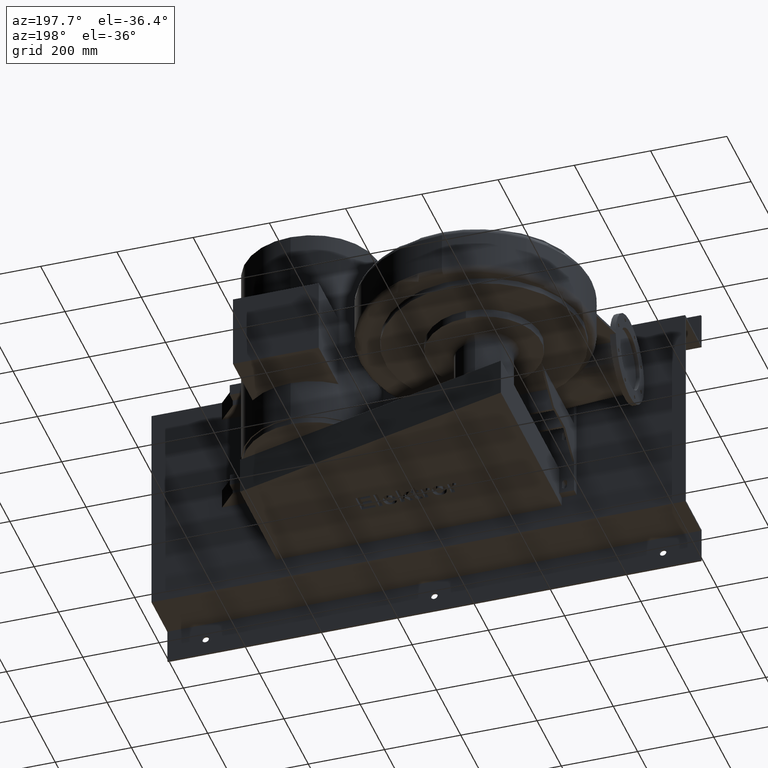
[diagram: clean part render]
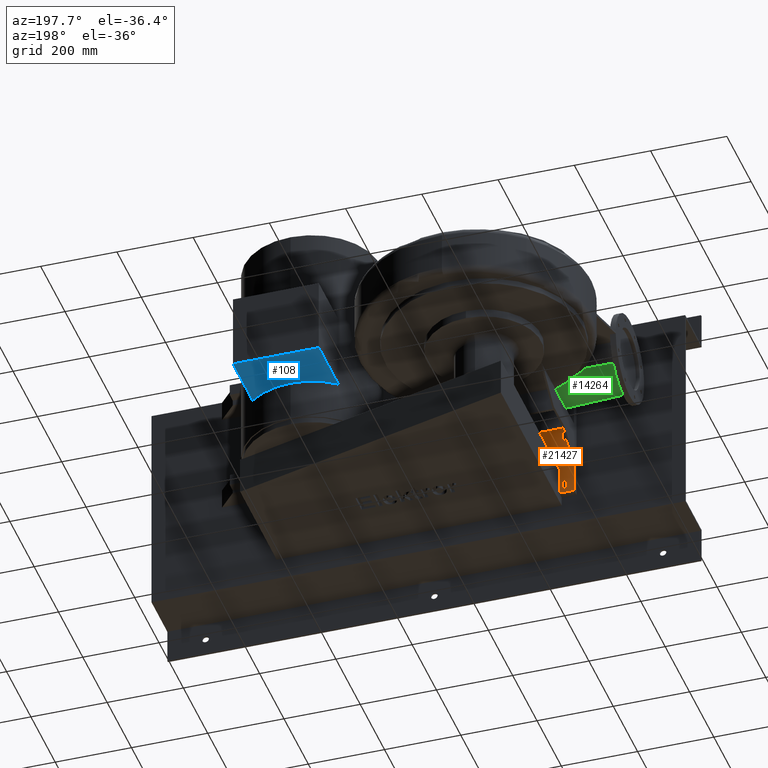
[diagram: same view with three faces highlighted in distinct colors, each labeled with its STEP entity id]
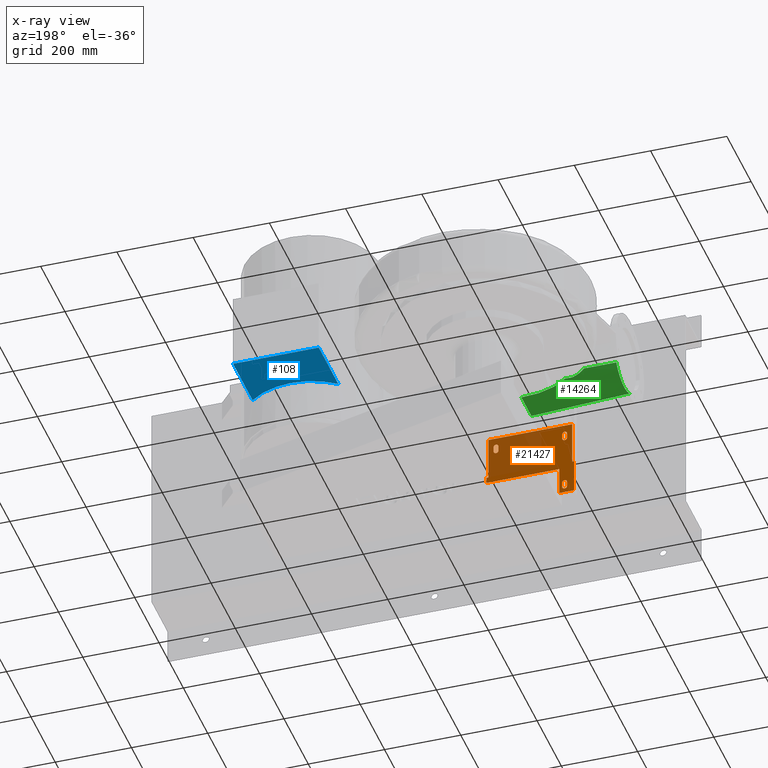
[diagram: x-ray of the same camera — body ghosted, the three highlighted faces saturated]
A machine part, auxiliary view with three faces highlighted in distinct colors.
The next image is the same camera in x-ray (body ghosted, the three faces saturated) — at least one of them is partly hidden behind the body in this view.
Their STEP definitions:

[orange] entity #21427 — the highlighted planar face has unit normal (0, 1, 0).
#9636=CARTESIAN_POINT('',(-60.999999999999936,-365.0,-219.50000000000003));
#9637=VERTEX_POINT('',#9636);
#9644=CARTESIAN_POINT('',(130.00000000000006,-365.0,-219.5));
#9645=VERTEX_POINT('',#9644);
#9646=CARTESIAN_POINT('',(130.00000000000006,-365.0,-219.5));
#9647=DIRECTION('',(-1.0,0.0,0.0));
#9648=VECTOR('',#9647,191.0);
#9649=LINE('',#9646,#9648);
#9650=EDGE_CURVE('',#9645,#9637,#9649,.T.);
#19228=CARTESIAN_POINT('',(-60.999999999999936,-365.0,-293.5));
#19229=VERTEX_POINT('',#19228);
#19230=CARTESIAN_POINT('',(-60.999999999999943,-365.0,-219.5));
#19231=DIRECTION('',(0.0,0.0,-1.0));
#19232=VECTOR('',#19231,73.999999999999943);
#19233=LINE('',#19230,#19232);
#19234=EDGE_CURVE('',#9637,#19229,#19233,.T.);
#19306=CARTESIAN_POINT('',(-99.999999999999929,-365.0,-293.5));
#19307=VERTEX_POINT('',#19306);
#19314=CARTESIAN_POINT('',(-60.999999999999929,-365.0,-293.5));
#19315=DIRECTION('',(-1.0,0.0,0.0));
#19316=VECTOR('',#19315,39.0);
#19317=LINE('',#19314,#19316);
#19318=EDGE_CURVE('',#19229,#19307,#19317,.T.);
#20595=CARTESIAN_POINT('',(111.50000000000003,-365.0,-113.0));
#20596=VERTEX_POINT('',#20595);
#20597=CARTESIAN_POINT('',(98.500000000000057,-365.0,-113.0));
#20598=VERTEX_POINT('',#20597);
#20599=CARTESIAN_POINT('',(105.00000000000007,-365.0,-113.0));
#20600=DIRECTION('',(0.0,-1.0,0.0));
#20601=DIRECTION('',(-1.0,0.0,0.0));
#20602=AXIS2_PLACEMENT_3D('',#20599,#20600,#20601);
#20603=CIRCLE('',#20602,6.500000000000021);
#20604=EDGE_CURVE('',#20596,#20598,#20603,.T.);
#20627=CARTESIAN_POINT('',(98.500000000000085,-365.0,-126.00000000000001));
#20628=VERTEX_POINT('',#20627);
#20629=CARTESIAN_POINT('',(98.500000000000043,-365.0,-113.0));
#20630=DIRECTION('',(0.0,0.0,-1.0));
#20631=VECTOR('',#20630,13.000000000000014);
#20632=LINE('',#20629,#20631);
#20633=EDGE_CURVE('',#20598,#20628,#20632,.T.);
#20651=CARTESIAN_POINT('',(111.50000000000006,-365.0,-126.00000000000001));
#20652=VERTEX_POINT('',#20651);
#20653=CARTESIAN_POINT('',(105.00000000000007,-365.0,-126.00000000000001));
#20654=DIRECTION('',(0.0,-1.0,0.0));
#20655=DIRECTION('',(1.0,0.0,0.0));
#20656=AXIS2_PLACEMENT_3D('',#20653,#20654,#20655);
#20657=CIRCLE('',#20656,6.5);
#20658=EDGE_CURVE('',#20628,#20652,#20657,.T.);
#20676=CARTESIAN_POINT('',(111.50000000000007,-365.0,-126.00000000000003));
#20677=DIRECTION('',(0.0,0.0,1.0));
#20678=VECTOR('',#20677,13.0);
#20679=LINE('',#20676,#20678);
#20680=EDGE_CURVE('',#20652,#20596,#20679,.T.);
#20693=CARTESIAN_POINT('',(-68.499999999999915,-365.0,-263.0));
#20694=VERTEX_POINT('',#20693);
#20695=CARTESIAN_POINT('',(-81.499999999999915,-365.0,-263.0));
#20696=VERTEX_POINT('',#20695);
#20697=CARTESIAN_POINT('',(-74.999999999999915,-365.0,-263.0));
#20698=DIRECTION('',(0.0,-1.0,0.0));
#20699=DIRECTION('',(1.0,0.0,0.0));
#20700=AXIS2_PLACEMENT_3D('',#20697,#20698,#20699);
#20701=CIRCLE('',#20700,6.5);
#20702=EDGE_CURVE('',#20694,#20696,#20701,.T.);
#20725=CARTESIAN_POINT('',(-81.499999999999915,-365.0,-276.0));
#20726=VERTEX_POINT('',#20725);
#20727=CARTESIAN_POINT('',(-81.499999999999915,-365.0,-262.99999999999994));
#20728=DIRECTION('',(0.0,0.0,-1.0));
#20729=VECTOR('',#20728,13.0);
#20730=LINE('',#20727,#20729);
#20731=EDGE_CURVE('',#20696,#20726,#20730,.T.);
#20749=CARTESIAN_POINT('',(-68.499999999999915,-365.0,-276.0));
#20750=VERTEX_POINT('',#20749);
#20751=CARTESIAN_POINT('',(-74.999999999999915,-365.0,-276.0));
#20752=DIRECTION('',(0.0,-1.0,0.0));
#20753=DIRECTION('',(-1.0,0.0,0.0));
#20754=AXIS2_PLACEMENT_3D('',#20751,#20752,#20753);
#20755=CIRCLE('',#20754,6.49999999999999);
#20756=EDGE_CURVE('',#20726,#20750,#20755,.T.);
#20774=CARTESIAN_POINT('',(-68.499999999999915,-365.0,-276.0));
#20775=DIRECTION('',(0.0,0.0,1.0));
#20776=VECTOR('',#20775,13.000000000000057);
#20777=LINE('',#20774,#20776);
#20778=EDGE_CURVE('',#20750,#20694,#20777,.T.);
#20847=CARTESIAN_POINT('',(-68.499999999999915,-365.0,-126.00000000000001));
#20848=VERTEX_POINT('',#20847);
#20849=CARTESIAN_POINT('',(-68.499999999999929,-365.0,-113.0));
#20850=VERTEX_POINT('',#20849);
#20851=CARTESIAN_POINT('',(-68.499999999999915,-365.0,-126.00000000000003));
#20852=DIRECTION('',(0.0,0.0,1.0));
#20853=VECTOR('',#20852,13.000000000000014);
#20854=LINE('',#20851,#20853);
#20855=EDGE_CURVE('',#20848,#20850,#20854,.T.);
#20878=CARTESIAN_POINT('',(-81.499999999999915,-365.0,-126.00000000000001));
#20879=VERTEX_POINT('',#20878);
#20880=CARTESIAN_POINT('',(-74.999999999999915,-365.0,-126.00000000000001));
#20881=DIRECTION('',(0.0,-1.0,0.0));
#20882=DIRECTION('',(1.0,0.0,0.0));
#20883=AXIS2_PLACEMENT_3D('',#20880,#20881,#20882);
#20884=CIRCLE('',#20883,6.5);
#20885=EDGE_CURVE('',#20879,#20848,#20884,.T.);
#20903=CARTESIAN_POINT('',(-81.499999999999915,-365.0,-113.0));
#20904=VERTEX_POINT('',#20903);
#20905=CARTESIAN_POINT('',(-81.499999999999929,-365.0,-113.00000000000001));
#20906=DIRECTION('',(0.0,0.0,-1.0));
#20907=VECTOR('',#20906,13.000000000000014);
#20908=LINE('',#20905,#20907);
#20909=EDGE_CURVE('',#20904,#20879,#20908,.T.);
#20927=CARTESIAN_POINT('',(-74.999999999999929,-365.0,-113.0));
#20928=DIRECTION('',(0.0,-1.0,0.0));
#20929=DIRECTION('',(-1.0,0.0,0.0));
#20930=AXIS2_PLACEMENT_3D('',#20927,#20928,#20929);
#20931=CIRCLE('',#20930,6.5);
#20932=EDGE_CURVE('',#20850,#20904,#20931,.T.);
#20957=CARTESIAN_POINT('',(125.00000000000001,-365.0,-203.49999999999997));
#20958=VERTEX_POINT('',#20957);
#20967=CARTESIAN_POINT('',(125.00000000000001,-365.0,-87.499999999999986));
#20968=VERTEX_POINT('',#20967);
#20969=CARTESIAN_POINT('',(125.00000000000001,-365.0,-87.499999999999986));
#20970=DIRECTION('',(0.0,0.0,-1.0));
#20971=VECTOR('',#20970,116.00000000000001);
#20972=LINE('',#20969,#20971);
#20973=EDGE_CURVE('',#20968,#20958,#20972,.T.);
#21038=CARTESIAN_POINT('',(-94.999999999999929,-365.0,-203.49999999999997));
#21039=VERTEX_POINT('',#21038);
#21053=CARTESIAN_POINT('',(-94.999999999999929,-365.0,-87.499999999999986));
#21054=VERTEX_POINT('',#21053);
#21061=CARTESIAN_POINT('',(-94.999999999999929,-365.0,-87.499999999999986));
#21062=DIRECTION('',(0.0,0.0,-1.0));
#21063=VECTOR('',#21062,116.00000000000001);
#21064=LINE('',#21061,#21063);
#21065=EDGE_CURVE('',#21054,#21039,#21064,.T.);
#21077=CARTESIAN_POINT('',(-94.999999999999929,-365.0,-87.499999999999986));
#21078=DIRECTION('',(1.0,0.0,0.0));
#21079=VECTOR('',#21078,219.99999999999994);
#21080=LINE('',#21077,#21079);
#21081=EDGE_CURVE('',#21054,#20968,#21080,.T.);
#21166=CARTESIAN_POINT('',(130.00000000000006,-365.0,-203.49999999999997));
#21167=VERTEX_POINT('',#21166);
#21174=CARTESIAN_POINT('',(130.00000000000006,-365.0,-203.49999999999997));
#21175=DIRECTION('',(-1.0,0.0,0.0));
#21176=VECTOR('',#21175,5.000000000000043);
#21177=LINE('',#21174,#21176);
#21178=EDGE_CURVE('',#21167,#20958,#21177,.T.);
#21269=CARTESIAN_POINT('',(-99.999999999999929,-365.0,-203.49999999999997));
#21270=VERTEX_POINT('',#21269);
#21277=CARTESIAN_POINT('',(-99.999999999999929,-365.0,-293.5));
#21278=DIRECTION('',(0.0,0.0,1.0));
#21279=VECTOR('',#21278,90.000000000000028);
#21280=LINE('',#21277,#21279);
#21281=EDGE_CURVE('',#19307,#21270,#21280,.T.);
#21376=CARTESIAN_POINT('',(-94.999999999999929,-365.0,-203.49999999999997));
#21377=DIRECTION('',(-1.0,0.0,0.0));
#21378=VECTOR('',#21377,5.0);
#21379=LINE('',#21376,#21378);
#21380=EDGE_CURVE('',#21039,#21270,#21379,.T.);
#21387=CARTESIAN_POINT('',(15.000000000000071,-365.0,-203.49999999999997));
#21388=DIRECTION('',(0.0,1.0,0.0));
#21389=DIRECTION('',(0.0,0.0,1.0));
#21390=AXIS2_PLACEMENT_3D('',#21387,#21388,#21389);
#21391=PLANE('',#21390);
#21392=ORIENTED_EDGE('',*,*,#19234,.T.);
#21393=ORIENTED_EDGE('',*,*,#19318,.T.);
#21394=ORIENTED_EDGE('',*,*,#21281,.T.);
#21395=ORIENTED_EDGE('',*,*,#21380,.F.);
#21396=ORIENTED_EDGE('',*,*,#21065,.F.);
#21397=ORIENTED_EDGE('',*,*,#21081,.T.);
#21398=ORIENTED_EDGE('',*,*,#20973,.T.);
#21399=ORIENTED_EDGE('',*,*,#21178,.F.);
#21400=CARTESIAN_POINT('',(130.00000000000006,-365.0,-203.49999999999997));
#21401=DIRECTION('',(0.0,0.0,-1.0));
#21402=VECTOR('',#21401,16.000000000000028);
#21403=LINE('',#21400,#21402);
#21404=EDGE_CURVE('',#21167,#9645,#21403,.T.);
#21405=ORIENTED_EDGE('',*,*,#21404,.T.);
#21406=ORIENTED_EDGE('',*,*,#9650,.T.);
#21407=EDGE_LOOP('',(#21392,#21393,#21394,#21395,#21396,#21397,#21398,#21399,#21405,#21406));
#21408=FACE_OUTER_BOUND('',#21407,.T.);
#21409=ORIENTED_EDGE('',*,*,#20604,.T.);
#21410=ORIENTED_EDGE('',*,*,#20633,.T.);
#21411=ORIENTED_EDGE('',*,*,#20658,.T.);
#21412=ORIENTED_EDGE('',*,*,#20680,.T.);
#21413=EDGE_LOOP('',(#21409,#21410,#21411,#21412));
#21414=FACE_BOUND('',#21413,.T.);
#21415=ORIENTED_EDGE('',*,*,#20702,.T.);
#21416=ORIENTED_EDGE('',*,*,#20731,.T.);
#21417=ORIENTED_EDGE('',*,*,#20756,.T.);
#21418=ORIENTED_EDGE('',*,*,#20778,.T.);
#21419=EDGE_LOOP('',(#21415,#21416,#21417,#21418));
#21420=FACE_BOUND('',#21419,.T.);
#21421=ORIENTED_EDGE('',*,*,#20855,.T.);
#21422=ORIENTED_EDGE('',*,*,#20932,.T.);
#21423=ORIENTED_EDGE('',*,*,#20909,.T.);
#21424=ORIENTED_EDGE('',*,*,#20885,.T.);
#21425=EDGE_LOOP('',(#21421,#21422,#21423,#21424));
#21426=FACE_BOUND('',#21425,.T.);
#21427=ADVANCED_FACE('',(#21408,#21414,#21420,#21426),#21391,.T.);

[blue] entity #108 — the highlighted planar face has unit normal (0, 0, -1).
#68=CARTESIAN_POINT('',(519.99999999999977,54.000000000000327,-94.500000000000242));
#69=DIRECTION('',(0.0,0.0,-1.0));
#70=DIRECTION('',(0.0,-1.0,0.0));
#71=AXIS2_PLACEMENT_3D('',#68,#69,#70);
#72=PLANE('',#71);
#73=CARTESIAN_POINT('',(407.49999999999977,-17.058889376661295,-94.500000000000313));
#74=VERTEX_POINT('',#73);
#75=CARTESIAN_POINT('',(632.49999999999989,-17.058889376661384,-94.500000000000057));
#76=VERTEX_POINT('',#75);
#77=CARTESIAN_POINT('',(519.99999999999977,-154.99999999999946,-94.500000000000242));
#78=DIRECTION('',(0.0,0.0,-1.0));
#79=DIRECTION('',(0.0,1.0,0.0));
#80=AXIS2_PLACEMENT_3D('',#77,#78,#79);
#81=CIRCLE('',#80,178.00000000000006);
#82=EDGE_CURVE('',#74,#76,#81,.T.);
#83=ORIENTED_EDGE('',*,*,#82,.F.);
#84=CARTESIAN_POINT('',(407.49999999999966,144.00000000000017,-94.500000000000455));
#85=VERTEX_POINT('',#84);
#86=CARTESIAN_POINT('',(407.49999999999966,144.00000000000017,-94.500000000000455));
#87=DIRECTION('',(0.0,-1.0,0.0));
#88=VECTOR('',#87,161.05888937666148);
#89=LINE('',#86,#88);
#90=EDGE_CURVE('',#85,#74,#89,.T.);
#91=ORIENTED_EDGE('',*,*,#90,.F.);
#92=CARTESIAN_POINT('',(632.49999999999966,144.00000000000045,-94.500000000000199));
#93=VERTEX_POINT('',#92);
#94=CARTESIAN_POINT('',(632.49999999999966,144.00000000000045,-94.500000000000199));
#95=DIRECTION('',(-1.0,0.0,0.0));
#96=VECTOR('',#95,225.0);
#97=LINE('',#94,#96);
#98=EDGE_CURVE('',#93,#85,#97,.T.);
#99=ORIENTED_EDGE('',*,*,#98,.F.);
#100=CARTESIAN_POINT('',(632.49999999999989,-17.05888937666138,-94.500000000000043));
#101=DIRECTION('',(0.0,1.0,0.0));
#102=VECTOR('',#101,161.05888937666182);
#103=LINE('',#100,#102);
#104=EDGE_CURVE('',#76,#93,#103,.T.);
#105=ORIENTED_EDGE('',*,*,#104,.F.);
#106=EDGE_LOOP('',(#83,#91,#99,#105));
#107=FACE_OUTER_BOUND('',#106,.T.);
#108=ADVANCED_FACE('',(#107),#72,.T.);

[green] entity #14264 — the highlighted face is a freeform B-spline surface patch.
#13947=CARTESIAN_POINT('',(9.372842E-014,-327.00000000000017,-67.499999999999957));
#13948=VERTEX_POINT('',#13947);
#13999=CARTESIAN_POINT('',(-142.58879906388901,-202.93830878871341,-67.499999999999986));
#14000=VERTEX_POINT('',#13999);
#14001=CARTESIAN_POINT('',(-182.29281062157435,-188.17008154841352,-58.035722901023775));
#14002=VERTEX_POINT('',#14001);
#14003=CARTESIAN_POINT('',(-142.58879906388898,-202.93830878871341,-67.499999999999986));
#14004=CARTESIAN_POINT('',(-143.28174014508897,-202.96888680181542,-67.499999999999986));
#14005=CARTESIAN_POINT('',(-143.98407246139942,-202.95091011329063,-67.482780645454525));
#14006=CARTESIAN_POINT('',(-147.13059697664153,-202.73818814826112,-67.355842960654627));
#14007=CARTESIAN_POINT('',(-150.02322275225004,-202.14854397463193,-67.091895926075466));
#14008=CARTESIAN_POINT('',(-160.88502956155295,-199.11876353005181,-65.622259783440313));
#14009=CARTESIAN_POINT('',(-170.81243549706505,-194.9056918153513,-63.4301891676023));
#14010=CARTESIAN_POINT('',(-180.3325988045703,-189.37753832839405,-59.042825035459721));
#14011=CARTESIAN_POINT('',(-181.32458254809197,-188.77924183552796,-58.55245935496697));
#14012=CARTESIAN_POINT('',(-182.29281062157438,-188.17008154841358,-58.03572290102376));
#14013=B_SPLINE_CURVE_WITH_KNOTS('',3,(#14003,#14004,#14005,#14006,#14007,#14008,#14009,#14010,#14011,#14012),.UNSPECIFIED.,.F.,.U.,(4,2,2,2,4),(2.872819435940258,3.132940653965591,4.083313771136317,6.532725547245983,6.822904306382004),.UNSPECIFIED.);
#14014=EDGE_CURVE('',#14000,#14002,#14013,.T.);
#14143=CARTESIAN_POINT('',(-264.99999999999994,-317.96738566437352,-62.167372465287578));
#14144=VERTEX_POINT('',#14143);
#14152=CARTESIAN_POINT('',(9.372842E-014,-327.00000000000017,-67.499999999999957));
#14153=CARTESIAN_POINT('',(-88.333333333333258,-323.98912855479131,-65.722457488429157));
#14154=CARTESIAN_POINT('',(-176.66666666666654,-320.97825710958239,-63.944914976858357));
#14155=CARTESIAN_POINT('',(-264.99999999999989,-317.96738566437352,-62.167372465287571));
#14156=QUASI_UNIFORM_CURVE('',3,(#14152,#14153,#14154,#14155),.UNSPECIFIED.,.F.,.U.);
#14157=EDGE_CURVE('',#13948,#14144,#14156,.T.);
#14162=CARTESIAN_POINT('',(7.843383E-014,-175.00000000000014,-67.500000000000028));
#14163=CARTESIAN_POINT('',(7.916214E-014,-182.23809523809538,-67.500000000000028));
#14164=CARTESIAN_POINT('',(8.061877E-014,-196.71428571428589,-67.500000000000014));
#14165=CARTESIAN_POINT('',(8.353203E-014,-225.66666666666663,-67.499999999999972));
#14166=CARTESIAN_POINT('',(8.717360E-014,-261.85714285714306,-67.5));
#14167=CARTESIAN_POINT('',(9.081517E-014,-298.04761904761915,-67.499999999999957));
#14168=CARTESIAN_POINT('',(9.300011E-014,-319.76190476190493,-67.499999999999957));
#14169=CARTESIAN_POINT('',(9.372842E-014,-327.00000000000017,-67.499999999999957));
#14170=CARTESIAN_POINT('',(-88.333333333333258,-181.3818051818744,-62.913910505344106));
#14171=CARTESIAN_POINT('',(-88.333333333333258,-187.60205134052885,-64.627560761946739));
#14172=CARTESIAN_POINT('',(-88.333333333333258,-200.45041028301137,-67.714499961268075));
#14173=CARTESIAN_POINT('',(-88.333333333333144,-227.39538724207333,-72.266172762177362));
#14174=CARTESIAN_POINT('',(-88.333333333333343,-262.67630646460128,-74.351459136780576));
#14175=CARTESIAN_POINT('',(-88.333333333333215,-297.70125109944024,-71.185995216675991));
#14176=CARTESIAN_POINT('',(-88.333333333333272,-317.54686111154558,-67.225814872326666));
#14177=CARTESIAN_POINT('',(-88.333333333333258,-323.98912855479131,-65.722457488429157));
#14178=CARTESIAN_POINT('',(-176.6666666666666,-187.76361036374865,-58.32782101068819));
#14179=CARTESIAN_POINT('',(-176.6666666666666,-192.97020999688846,-61.747024112459378));
#14180=CARTESIAN_POINT('',(-176.66666666666657,-204.18575335694865,-67.93141751611158));
#14181=CARTESIAN_POINT('',(-176.66666666666652,-229.12554319248648,-77.027329846544944));
#14182=CARTESIAN_POINT('',(-176.6666666666666,-263.49690756595692,-81.209035304539526));
#14183=CARTESIAN_POINT('',(-176.66666666666657,-297.35156755373305,-74.866457439053121));
#14184=CARTESIAN_POINT('',(-176.66666666666657,-315.33696549192507,-66.95966506639968));
#14185=CARTESIAN_POINT('',(-176.66666666666657,-320.97825710958239,-63.944914976858357));
#14186=CARTESIAN_POINT('',(-264.99999999999994,-194.14541554562291,-53.741731516032267));
#14187=CARTESIAN_POINT('',(-264.99999999999994,-198.33416609932192,-58.874584874406096));
#14188=CARTESIAN_POINT('',(-264.99999999999994,-207.9218779256741,-68.145917477379641));
#14189=CARTESIAN_POINT('',(-264.99999999999977,-230.85426376789317,-81.793502608722335));
#14190=CARTESIAN_POINT('',(-265.00000000000006,-264.31607117341514,-88.060494441320117));
#14191=CARTESIAN_POINT('',(-264.99999999999989,-297.00519960555414,-78.552452655729155));
#14192=CARTESIAN_POINT('',(-264.99999999999994,-313.12192184156572,-66.685479938726388));
#14193=CARTESIAN_POINT('',(-264.99999999999994,-317.96738566437352,-62.167372465287571));
#14194=B_SPLINE_SURFACE_WITH_KNOTS('',3,3,((#14162,#14170,#14178,#14186),(#14163,#14171,#14179,#14187),(#14164,#14172,#14180,#14188),(#14165,#14173,#14181,#14189),(#14166,#14174,#14182,#14190),(#14167,#14175,#14183,#14191),(#14168,#14176,#14184,#14192),(#14169,#14177,#14185,#14193)),.UNSPECIFIED.,.F.,.F.,.F.,(4,1,1,1,1,4),(4,4),(0.0,0.142857142857143,0.285714285714286,0.571428571428571,0.857142857142857,1.0),(0.0,1.0),.UNSPECIFIED.);
#14195=CARTESIAN_POINT('',(-127.78385606986525,-202.28499820700932,-67.499999999999986));
#14196=VERTEX_POINT('',#14195);
#14197=CARTESIAN_POINT('',(8.607027E-014,-244.56694704834834,-67.499999999999986));
#14198=VERTEX_POINT('',#14197);
#14199=CARTESIAN_POINT('',(-127.78385606986531,-202.28499820700929,-67.500000000000256));
#14200=CARTESIAN_POINT('',(-120.63344954904909,-206.98372395399605,-69.049078235236763));
#14201=CARTESIAN_POINT('',(-112.82312566753743,-211.60967633237152,-70.048768758409707));
#14202=CARTESIAN_POINT('',(-104.36253827624421,-215.9817838190973,-70.625431110676359));
#14203=CARTESIAN_POINT('',(-89.961617963732721,-223.42362781906201,-71.606978631923369));
#14204=CARTESIAN_POINT('',(-73.798836964944726,-230.06681221311464,-71.373698312276673));
#14205=CARTESIAN_POINT('',(-55.982769801065757,-235.12286259230478,-70.638708982274224));
#14206=CARTESIAN_POINT('',(-48.504063494670518,-237.24525669356663,-70.330180209517522));
#14207=CARTESIAN_POINT('',(-40.678389705746142,-239.09366482581873,-69.927391824939889));
#14208=CARTESIAN_POINT('',(-32.835029463704061,-240.56175370388789,-69.486678590416815));
#14209=CARTESIAN_POINT('',(-21.993629649955963,-242.59100366794678,-68.877507491394255));
#14210=CARTESIAN_POINT('',(-11.025580335152949,-243.92979464158799,-68.194863992198293));
#14211=CARTESIAN_POINT('',(8.437695E-014,-244.56694704834834,-67.499999999999986));
#14212=B_SPLINE_CURVE_WITH_KNOTS('',3,(#14199,#14200,#14201,#14202,#14203,#14204,#14205,#14206,#14207,#14208,#14209,#14210,#14211),.UNSPECIFIED.,.F.,.U.,(4,3,3,3,4),(-14.804292424850814,-11.442916999399056,-5.721458499699528,-3.319743947891267,0.0),.UNSPECIFIED.);
#14213=EDGE_CURVE('',#14196,#14198,#14212,.T.);
#14214=ORIENTED_EDGE('',*,*,#14213,.T.);
#14215=CARTESIAN_POINT('',(8.881784E-014,-261.37655472199538,-67.499999999999972));
#14216=VERTEX_POINT('',#14215);
#14217=CARTESIAN_POINT('',(8.847435E-014,-261.37655472199538,-67.499999999999972));
#14218=DIRECTION('',(0.0,1.0,0.0));
#14219=VECTOR('',#14218,16.809607673647008);
#14220=LINE('',#14217,#14219);
#14221=EDGE_CURVE('',#14216,#14198,#14220,.T.);
#14222=ORIENTED_EDGE('',*,*,#14221,.F.);
#14223=CARTESIAN_POINT('',(9.282007E-014,-317.97262118526442,-67.499999999999972));
#14224=VERTEX_POINT('',#14223);
#14225=CARTESIAN_POINT('',(8.712524E-014,-261.37655472199538,-67.499999999999972));
#14226=DIRECTION('',(0.0,-1.0,0.0));
#14227=VECTOR('',#14226,56.59606646326904);
#14228=LINE('',#14225,#14227);
#14229=EDGE_CURVE('',#14216,#14224,#14228,.T.);
#14230=ORIENTED_EDGE('',*,*,#14229,.T.);
#14231=CARTESIAN_POINT('',(9.282007E-014,-317.97262118526442,-67.499999999999957));
#14232=DIRECTION('',(0.0,-1.0,0.0));
#14233=VECTOR('',#14232,9.027378814735755);
#14234=LINE('',#14231,#14233);
#14235=EDGE_CURVE('',#14224,#13948,#14234,.T.);
#14236=ORIENTED_EDGE('',*,*,#14235,.T.);
#14237=ORIENTED_EDGE('',*,*,#14157,.T.);
#14238=CARTESIAN_POINT('',(-264.99999999999994,-194.14541554562291,-53.74173151603226));
#14239=VERTEX_POINT('',#14238);
#14240=CARTESIAN_POINT('',(-264.99999999999994,-260.00000000000011,2.970061E-014));
#14241=DIRECTION('',(-1.0,0.0,0.0));
#14242=DIRECTION('',(0.0,0.0,-1.0));
#14243=AXIS2_PLACEMENT_3D('',#14240,#14241,#14242);
#14244=CIRCLE('',#14243,85.0);
#14245=EDGE_CURVE('',#14239,#14144,#14244,.T.);
#14246=ORIENTED_EDGE('',*,*,#14245,.F.);
#14247=CARTESIAN_POINT('',(-182.29281062157435,-188.17008154841358,-58.03572290102376));
#14248=CARTESIAN_POINT('',(-209.86187374771617,-190.16185954748335,-56.604392439359927));
#14249=CARTESIAN_POINT('',(-237.43093687385806,-192.15363754655314,-55.173061977696101));
#14250=CARTESIAN_POINT('',(-264.99999999999994,-194.14541554562291,-53.741731516032267));
#14251=B_SPLINE_CURVE_WITH_KNOTS('',3,(#14247,#14248,#14249,#14250),.UNSPECIFIED.,.F.,.U.,(4,4),(0.687897398571979,1.0),.UNSPECIFIED.);
#14252=EDGE_CURVE('',#14002,#14239,#14251,.T.);
#14253=ORIENTED_EDGE('',*,*,#14252,.F.);
#14254=ORIENTED_EDGE('',*,*,#14014,.F.);
#14255=CARTESIAN_POINT('',(-127.78385606986525,-202.28499820700932,-67.499999999999986));
#14256=CARTESIAN_POINT('',(-132.71883706787318,-202.50276840091072,-67.499999999999986));
#14257=CARTESIAN_POINT('',(-137.6538180658811,-202.72053859481207,-67.499999999999986));
#14258=CARTESIAN_POINT('',(-142.58879906388901,-202.93830878871341,-67.499999999999986));
#14259=B_SPLINE_CURVE_WITH_KNOTS('',3,(#14255,#14256,#14257,#14258),.UNSPECIFIED.,.F.,.U.,(4,4),(12.753307901752059,14.235242960290249),.UNSPECIFIED.);
#14260=EDGE_CURVE('',#14196,#14000,#14259,.T.);
#14261=ORIENTED_EDGE('',*,*,#14260,.F.);
#14262=EDGE_LOOP('',(#14214,#14222,#14230,#14236,#14237,#14246,#14253,#14254,#14261));
#14263=FACE_OUTER_BOUND('',#14262,.T.);
#14264=ADVANCED_FACE('',(#14263),#14194,.T.);